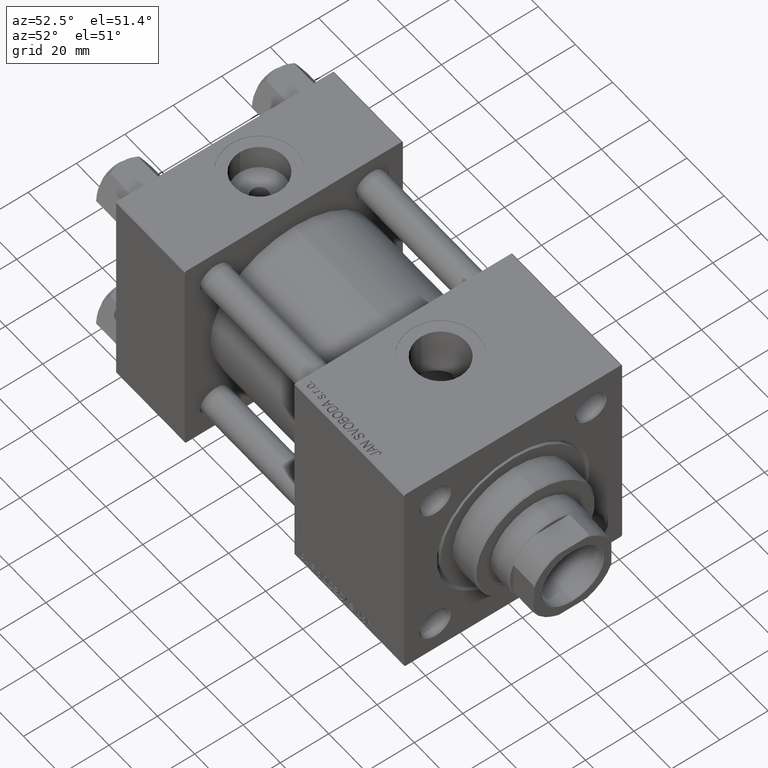
[diagram: clean part render]
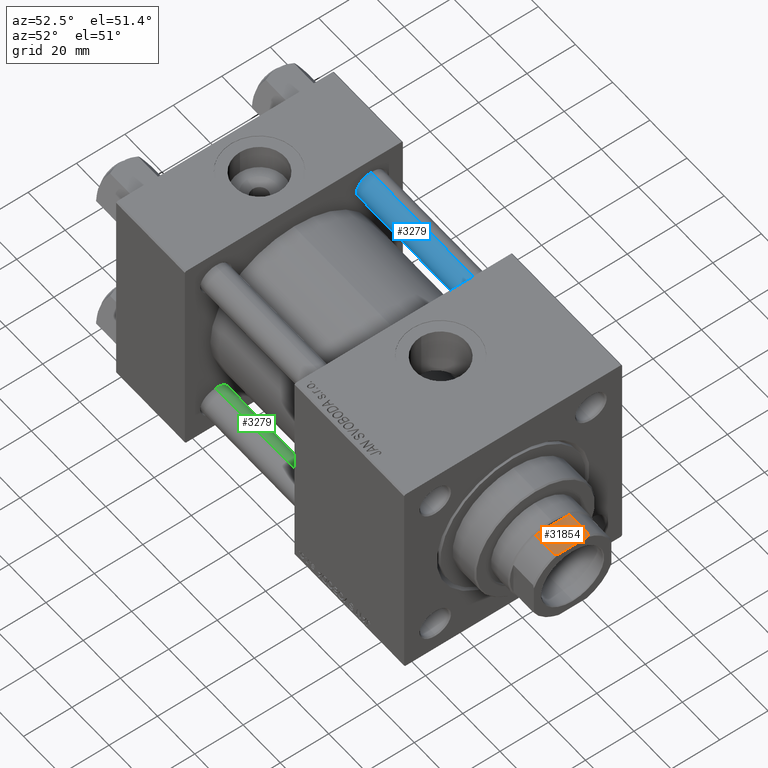
[diagram: same view with three faces highlighted in distinct colors, each labeled with its STEP entity id]
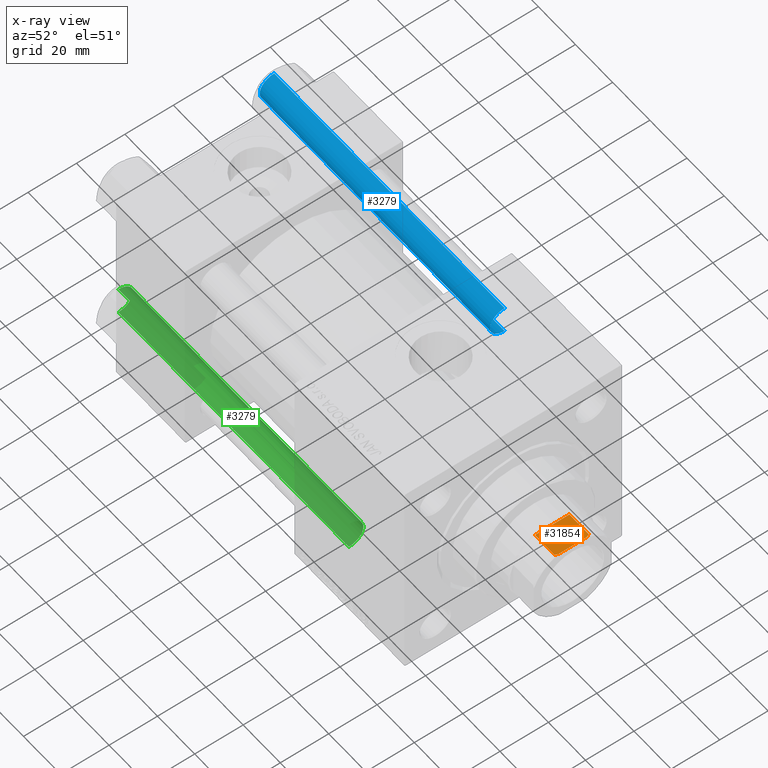
[diagram: x-ray of the same camera — body ghosted, the three highlighted faces saturated]
A machine part, auxiliary view with three faces highlighted in distinct colors.
The next image is the same camera in x-ray (body ghosted, the three faces saturated) — at least one of them is partly hidden behind the body in this view.
Their STEP definitions:

[orange] entity #31854 — the highlighted planar face has unit normal (-0, 0, -1).
#1811 = CARTESIAN_POINT ( 'NONE',  ( 16.00000000000000355, -6.645462757301111800, 149.6795515649600361 ) ) ;
#3274 = LINE ( 'NONE', #38804, #34582 ) ;
#3416 = ORIENTED_EDGE ( 'NONE', *, *, #34746, .F. ) ;
#3708 = VECTOR ( 'NONE', #7645, 1000.000000000000000 ) ;
#3845 = ORIENTED_EDGE ( 'NONE', *, *, #37088, .T. ) ;
#4357 = CARTESIAN_POINT ( 'NONE',  ( 16.00000000000000000, 16.00000000000000000, 150.0000000000000284 ) ) ;
#5381 = VERTEX_POINT ( 'NONE', #20981 ) ;
#5660 = CARTESIAN_POINT ( 'NONE',  ( 16.00000000000000355, 5.744562646537874961, 150.0000000000000284 ) ) ;
#6828 = DIRECTION ( 'NONE',  ( -2.168404344971008868E-16, 1.000000000000000000, -0.000000000000000000 ) ) ;
#7645 = DIRECTION ( 'NONE',  ( -0.000000000000000000, -0.000000000000000000, 1.000000000000000000 ) ) ;
#8027 = EDGE_CURVE ( 'NONE', #30996, #5381, #34783, .T. ) ;
#8138 = DIRECTION ( 'NONE',  ( -0.000000000000000000, -0.000000000000000000, 1.000000000000000000 ) ) ;
#10083 = EDGE_CURVE ( 'NONE', #16734, #44845, #46923, .T. ) ;
#11663 = CARTESIAN_POINT ( 'NONE',  ( 15.99999999999999645, -7.088723439378925129, 149.5000000000000000 ) ) ;
#11994 = PLANE ( 'NONE',  #14151 ) ;
#13272 = EDGE_CURVE ( 'NONE', #5381, #36441, #32007, .T. ) ;
#14151 = AXIS2_PLACEMENT_3D ( 'NONE', #4357, #30781, #47019 ) ;
#14253 = CARTESIAN_POINT ( 'NONE',  ( 16.00000000000000355, 6.197659614355954361, 149.8468915343184165 ) ) ;
#16734 = VERTEX_POINT ( 'NONE', #40309 ) ;
#19959 = CARTESIAN_POINT ( 'NONE',  ( 16.00000000000000000, 7.088723439378916247, 139.0000000000000000 ) ) ;
#20346 = CARTESIAN_POINT ( 'NONE',  ( 15.99999999999999645, -7.088723439378925129, 149.5000000000000000 ) ) ;
#20826 = VECTOR ( 'NONE', #8138, 1000.000000000000000 ) ;
#20981 = CARTESIAN_POINT ( 'NONE',  ( 16.00000000000000000, 7.088723439378916247, 149.4999999999999716 ) ) ;
#23644 = LINE ( 'NONE', #31257, #3708 ) ;
#24918 = CARTESIAN_POINT ( 'NONE',  ( 16.00000000000000355, -6.197659614356007651, 149.8468915343184449 ) ) ;
#25151 = ORIENTED_EDGE ( 'NONE', *, *, #13272, .T. ) ;
#26968 = CARTESIAN_POINT ( 'NONE',  ( 16.00000000000000355, 5.744562646537874961, 150.0000000000000284 ) ) ;
#28877 = VECTOR ( 'NONE', #34622, 1000.000000000000000 ) ;
#29828 = CARTESIAN_POINT ( 'NONE',  ( 16.00000000000000000, 16.00000000000000000, 150.0000000000000284 ) ) ;
#30759 = ORIENTED_EDGE ( 'NONE', *, *, #10083, .T. ) ;
#30781 = DIRECTION ( 'NONE',  ( -1.000000000000000000, -2.168404344971009115E-16, 0.000000000000000000 ) ) ;
#30988 = CARTESIAN_POINT ( 'NONE',  ( 16.00000000000000000, 7.088723439378916247, -0.001000000000001000089 ) ) ;
#30996 = VERTEX_POINT ( 'NONE', #19959 ) ;
#31257 = CARTESIAN_POINT ( 'NONE',  ( 15.99999999999999645, -7.088723439378925129, -0.001000000000001000089 ) ) ;
#31854 = ADVANCED_FACE ( 'NONE', ( #46764 ), #11994, .F. ) ;
#32007 = B_SPLINE_CURVE_WITH_KNOTS ( 'NONE', 3,
 ( #37608, #37366, #14253, #5660 ),
 .UNSPECIFIED., .F., .F.,
 ( 4, 4 ),
 ( 0.000000000000000000, 0.001434143729551229894 ),
 .UNSPECIFIED. ) ;
#34582 = VECTOR ( 'NONE', #6828, 1000.000000000000000 ) ;
#34622 = DIRECTION ( 'NONE',  ( -2.168404344971008868E-16, 1.000000000000000000, -0.000000000000000000 ) ) ;
#34746 = EDGE_CURVE ( 'NONE', #47192, #44845, #23644, .T. ) ;
#34783 = LINE ( 'NONE', #30988, #20826 ) ;
#36441 = VERTEX_POINT ( 'NONE', #26968 ) ;
#37088 = EDGE_CURVE ( 'NONE', #47192, #30996, #3274, .T. ) ;
#37366 = CARTESIAN_POINT ( 'NONE',  ( 16.00000000000000000, 6.645462757301070056, 149.6795515649599793 ) ) ;
#37608 = CARTESIAN_POINT ( 'NONE',  ( 16.00000000000000000, 7.088723439378916247, 149.4999999999999716 ) ) ;
#38804 = CARTESIAN_POINT ( 'NONE',  ( 16.00000000000000000, 16.00000000000000000, 139.0000000000000000 ) ) ;
#39549 = EDGE_CURVE ( 'NONE', #16734, #36441, #41732, .T. ) ;
#40309 = CARTESIAN_POINT ( 'NONE',  ( 16.00000000000000355, -5.744562646537949568, 150.0000000000000284 ) ) ;
#40446 = ORIENTED_EDGE ( 'NONE', *, *, #39549, .F. ) ;
#40642 = CARTESIAN_POINT ( 'NONE',  ( 16.00000000000000355, -5.744562646537949568, 150.0000000000000284 ) ) ;
#41732 = LINE ( 'NONE', #29828, #28877 ) ;
#41736 = ORIENTED_EDGE ( 'NONE', *, *, #8027, .T. ) ;
#42827 = CARTESIAN_POINT ( 'NONE',  ( 15.99999999999999645, -7.088723439378925129, 139.0000000000000000 ) ) ;
#43498 = EDGE_LOOP ( 'NONE', ( #41736, #25151, #40446, #30759, #3416, #3845 ) ) ;
#44845 = VERTEX_POINT ( 'NONE', #11663 ) ;
#46764 = FACE_OUTER_BOUND ( 'NONE', #43498, .T. ) ;
#46923 = B_SPLINE_CURVE_WITH_KNOTS ( 'NONE', 3,
 ( #40642, #24918, #1811, #20346 ),
 .UNSPECIFIED., .F., .F.,
 ( 4, 4 ),
 ( 8.673617379884035472E-19, 0.001434143729551160071 ),
 .UNSPECIFIED. ) ;
#47019 = DIRECTION ( 'NONE',  ( 2.168404344971009115E-16, -1.000000000000000000, 0.000000000000000000 ) ) ;
#47192 = VERTEX_POINT ( 'NONE', #42827 ) ;

[blue] entity #3279 — the highlighted cylindrical surface (edge-blend (fillet) strip) has radius 6 mm, axis along (-1, -0, 0).
#709 = CARTESIAN_POINT ( 'NONE',  ( -6.000000000000000888, 0.000000000000000000, 124.5000000000000000 ) ) ;
#946 = CARTESIAN_POINT ( 'NONE',  ( -6.000000000000000888, 0.000000000000000000, 125.0000000000000000 ) ) ;
#1623 = EDGE_LOOP ( 'NONE', ( #30159, #19224, #20915, #18659 ) ) ;
#3030 = AXIS2_PLACEMENT_3D ( 'NONE', #34895, #23482, #43017 ) ;
#3279 = ADVANCED_FACE ( 'NONE', ( #42835 ), #22530, .T. ) ;
#5068 = LINE ( 'NONE', #43163, #31652 ) ;
#7550 = DIRECTION ( 'NONE',  ( -0.000000000000000000, -0.000000000000000000, -1.000000000000000000 ) ) ;
#8563 = LINE ( 'NONE', #946, #40991 ) ;
#9118 = CARTESIAN_POINT ( 'NONE',  ( 0.000000000000000000, 0.000000000000000000, 0.4999999999999865663 ) ) ;
#9526 = EDGE_CURVE ( 'NONE', #16403, #21709, #24941, .T. ) ;
#9904 = CARTESIAN_POINT ( 'NONE',  ( 6.000000000000000888, 7.347880794884120722E-16, 124.5000000000000000 ) ) ;
#11872 = DIRECTION ( 'NONE',  ( -1.000000000000000000, 0.000000000000000000, 0.000000000000000000 ) ) ;
#12529 = AXIS2_PLACEMENT_3D ( 'NONE', #50213, #7550, #11872 ) ;
#12741 = CIRCLE ( 'NONE', #28141, 6.000000000000000888 ) ;
#16403 = VERTEX_POINT ( 'NONE', #9904 ) ;
#17790 = CARTESIAN_POINT ( 'NONE',  ( 6.000000000000000888, 7.347880794884120722E-16, 0.4999999999999865663 ) ) ;
#18659 = ORIENTED_EDGE ( 'NONE', *, *, #42008, .T. ) ;
#19224 = ORIENTED_EDGE ( 'NONE', *, *, #9526, .T. ) ;
#20915 = ORIENTED_EDGE ( 'NONE', *, *, #34375, .T. ) ;
#21709 = VERTEX_POINT ( 'NONE', #709 ) ;
#22530 = CYLINDRICAL_SURFACE ( 'NONE', #12529, 6.000000000000000888 ) ;
#23482 = DIRECTION ( 'NONE',  ( 0.000000000000000000, 0.000000000000000000, -1.000000000000000000 ) ) ;
#24941 = CIRCLE ( 'NONE', #3030, 6.000000000000000888 ) ;
#26786 = VERTEX_POINT ( 'NONE', #17790 ) ;
#28141 = AXIS2_PLACEMENT_3D ( 'NONE', #9118, #28169, #40077 ) ;
#28169 = DIRECTION ( 'NONE',  ( -0.000000000000000000, -0.000000000000000000, 1.000000000000000000 ) ) ;
#30159 = ORIENTED_EDGE ( 'NONE', *, *, #50174, .F. ) ;
#31652 = VECTOR ( 'NONE', #44154, 1000.000000000000000 ) ;
#31913 = DIRECTION ( 'NONE',  ( -0.000000000000000000, -0.000000000000000000, -1.000000000000000000 ) ) ;
#34375 = EDGE_CURVE ( 'NONE', #21709, #43193, #8563, .T. ) ;
#34895 = CARTESIAN_POINT ( 'NONE',  ( 0.000000000000000000, 0.000000000000000000, 124.5000000000000000 ) ) ;
#34991 = CARTESIAN_POINT ( 'NONE',  ( -6.000000000000000888, 0.000000000000000000, 0.4999999999999865663 ) ) ;
#40077 = DIRECTION ( 'NONE',  ( 1.000000000000000000, 0.000000000000000000, 0.000000000000000000 ) ) ;
#40991 = VECTOR ( 'NONE', #31913, 1000.000000000000000 ) ;
#42008 = EDGE_CURVE ( 'NONE', #43193, #26786, #12741, .T. ) ;
#42835 = FACE_OUTER_BOUND ( 'NONE', #1623, .T. ) ;
#43017 = DIRECTION ( 'NONE',  ( 1.000000000000000000, 0.000000000000000000, 0.000000000000000000 ) ) ;
#43163 = CARTESIAN_POINT ( 'NONE',  ( 6.000000000000000888, 7.347880794884120722E-16, 125.0000000000000000 ) ) ;
#43193 = VERTEX_POINT ( 'NONE', #34991 ) ;
#44154 = DIRECTION ( 'NONE',  ( -0.000000000000000000, -0.000000000000000000, -1.000000000000000000 ) ) ;
#50174 = EDGE_CURVE ( 'NONE', #16403, #26786, #5068, .T. ) ;
#50213 = CARTESIAN_POINT ( 'NONE',  ( 0.000000000000000000, 0.000000000000000000, 125.0000000000000000 ) ) ;

[green] entity #3279 — the highlighted cylindrical surface (edge-blend (fillet) strip) has radius 6 mm, axis along (-1, 0, -0).
#709 = CARTESIAN_POINT ( 'NONE',  ( -6.000000000000000888, 0.000000000000000000, 124.5000000000000000 ) ) ;
#946 = CARTESIAN_POINT ( 'NONE',  ( -6.000000000000000888, 0.000000000000000000, 125.0000000000000000 ) ) ;
#1623 = EDGE_LOOP ( 'NONE', ( #30159, #19224, #20915, #18659 ) ) ;
#3030 = AXIS2_PLACEMENT_3D ( 'NONE', #34895, #23482, #43017 ) ;
#3279 = ADVANCED_FACE ( 'NONE', ( #42835 ), #22530, .T. ) ;
#5068 = LINE ( 'NONE', #43163, #31652 ) ;
#7550 = DIRECTION ( 'NONE',  ( -0.000000000000000000, -0.000000000000000000, -1.000000000000000000 ) ) ;
#8563 = LINE ( 'NONE', #946, #40991 ) ;
#9118 = CARTESIAN_POINT ( 'NONE',  ( 0.000000000000000000, 0.000000000000000000, 0.4999999999999865663 ) ) ;
#9526 = EDGE_CURVE ( 'NONE', #16403, #21709, #24941, .T. ) ;
#9904 = CARTESIAN_POINT ( 'NONE',  ( 6.000000000000000888, 7.347880794884120722E-16, 124.5000000000000000 ) ) ;
#11872 = DIRECTION ( 'NONE',  ( -1.000000000000000000, 0.000000000000000000, 0.000000000000000000 ) ) ;
#12529 = AXIS2_PLACEMENT_3D ( 'NONE', #50213, #7550, #11872 ) ;
#12741 = CIRCLE ( 'NONE', #28141, 6.000000000000000888 ) ;
#16403 = VERTEX_POINT ( 'NONE', #9904 ) ;
#17790 = CARTESIAN_POINT ( 'NONE',  ( 6.000000000000000888, 7.347880794884120722E-16, 0.4999999999999865663 ) ) ;
#18659 = ORIENTED_EDGE ( 'NONE', *, *, #42008, .T. ) ;
#19224 = ORIENTED_EDGE ( 'NONE', *, *, #9526, .T. ) ;
#20915 = ORIENTED_EDGE ( 'NONE', *, *, #34375, .T. ) ;
#21709 = VERTEX_POINT ( 'NONE', #709 ) ;
#22530 = CYLINDRICAL_SURFACE ( 'NONE', #12529, 6.000000000000000888 ) ;
#23482 = DIRECTION ( 'NONE',  ( 0.000000000000000000, 0.000000000000000000, -1.000000000000000000 ) ) ;
#24941 = CIRCLE ( 'NONE', #3030, 6.000000000000000888 ) ;
#26786 = VERTEX_POINT ( 'NONE', #17790 ) ;
#28141 = AXIS2_PLACEMENT_3D ( 'NONE', #9118, #28169, #40077 ) ;
#28169 = DIRECTION ( 'NONE',  ( -0.000000000000000000, -0.000000000000000000, 1.000000000000000000 ) ) ;
#30159 = ORIENTED_EDGE ( 'NONE', *, *, #50174, .F. ) ;
#31652 = VECTOR ( 'NONE', #44154, 1000.000000000000000 ) ;
#31913 = DIRECTION ( 'NONE',  ( -0.000000000000000000, -0.000000000000000000, -1.000000000000000000 ) ) ;
#34375 = EDGE_CURVE ( 'NONE', #21709, #43193, #8563, .T. ) ;
#34895 = CARTESIAN_POINT ( 'NONE',  ( 0.000000000000000000, 0.000000000000000000, 124.5000000000000000 ) ) ;
#34991 = CARTESIAN_POINT ( 'NONE',  ( -6.000000000000000888, 0.000000000000000000, 0.4999999999999865663 ) ) ;
#40077 = DIRECTION ( 'NONE',  ( 1.000000000000000000, 0.000000000000000000, 0.000000000000000000 ) ) ;
#40991 = VECTOR ( 'NONE', #31913, 1000.000000000000000 ) ;
#42008 = EDGE_CURVE ( 'NONE', #43193, #26786, #12741, .T. ) ;
#42835 = FACE_OUTER_BOUND ( 'NONE', #1623, .T. ) ;
#43017 = DIRECTION ( 'NONE',  ( 1.000000000000000000, 0.000000000000000000, 0.000000000000000000 ) ) ;
#43163 = CARTESIAN_POINT ( 'NONE',  ( 6.000000000000000888, 7.347880794884120722E-16, 125.0000000000000000 ) ) ;
#43193 = VERTEX_POINT ( 'NONE', #34991 ) ;
#44154 = DIRECTION ( 'NONE',  ( -0.000000000000000000, -0.000000000000000000, -1.000000000000000000 ) ) ;
#50174 = EDGE_CURVE ( 'NONE', #16403, #26786, #5068, .T. ) ;
#50213 = CARTESIAN_POINT ( 'NONE',  ( 0.000000000000000000, 0.000000000000000000, 125.0000000000000000 ) ) ;